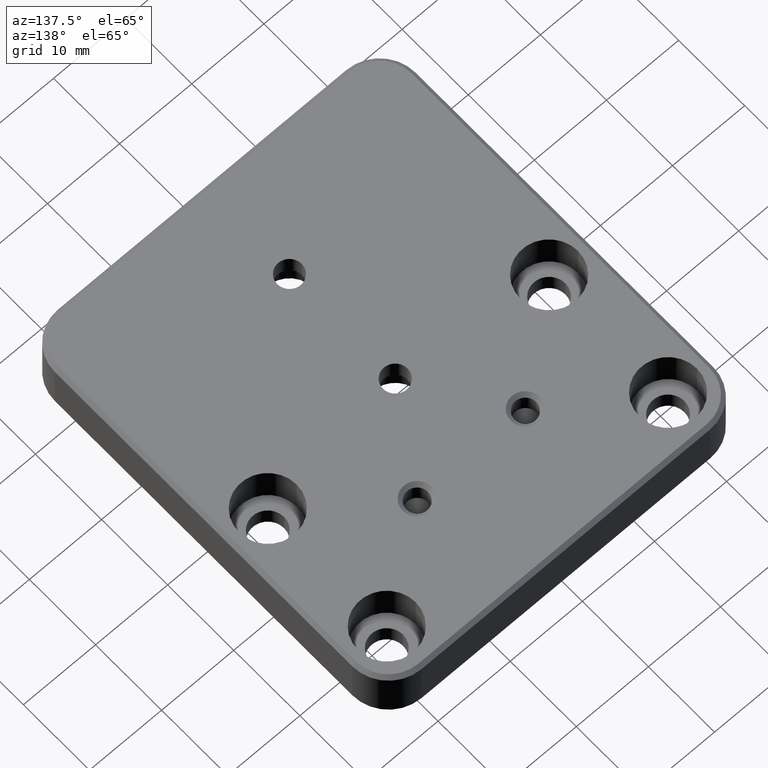
[diagram: clean part render]
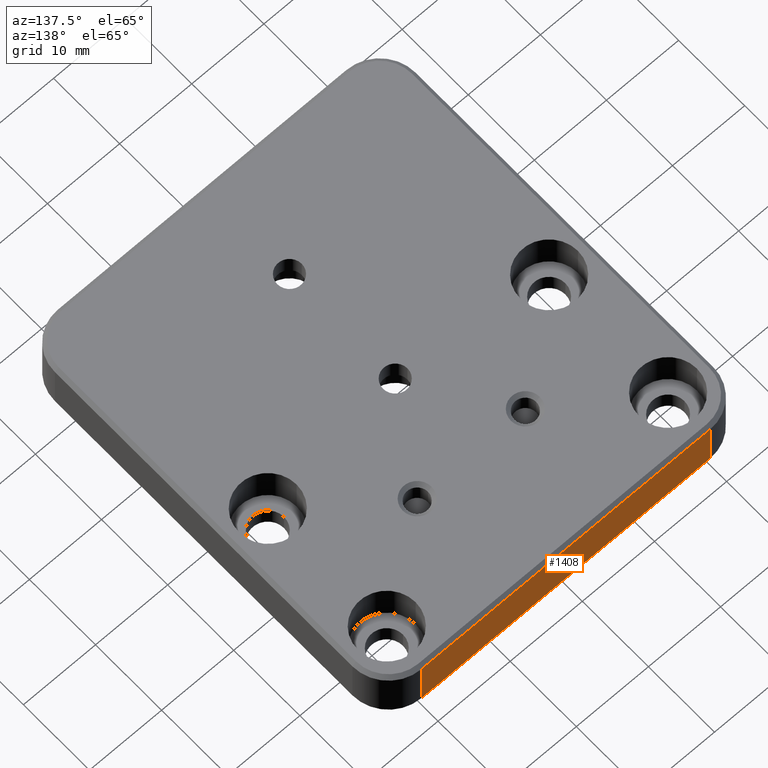
[diagram: same view with one face highlighted and labeled with its STEP entity id]
A machine part, auxiliary view. The second image highlights one B-rep face of the part: STEP entity #1408.
In plain terms, the highlighted planar face has unit normal (0, -1, 0).
Its self-contained STEP definition (entity closure, byte-faithful):
#78 = CARTESIAN_POINT ( 'NONE',  ( 19.99999999999998934, 27.50000000000000711, 0.4999999999999935052 ) ) ;
#94 = DIRECTION ( 'NONE',  ( 1.000000000000000000, 0.0000000000000000000, 0.0000000000000000000 ) ) ;
#207 = EDGE_CURVE ( 'NONE', #895, #449, #1379, .T. ) ;
#240 = DIRECTION ( 'NONE',  ( -0.0000000000000000000, -0.0000000000000000000, 1.000000000000000000 ) ) ;
#257 = CARTESIAN_POINT ( 'NONE',  ( 19.99999999999998934, 27.50000000000000711, 7.499999999999992895 ) ) ;
#260 = VECTOR ( 'NONE', #1455, 1000.000000000000000 ) ;
#447 = CARTESIAN_POINT ( 'NONE',  ( -25.00000000000000711, 27.50000000000000711, 0.4999999999999935052 ) ) ;
#449 = VERTEX_POINT ( 'NONE', #78 ) ;
#452 = CARTESIAN_POINT ( 'NONE',  ( -20.00000000000000711, 27.50000000000000711, 0.4999999999999935052 ) ) ;
#460 = FACE_OUTER_BOUND ( 'NONE', #1871, .T. ) ;
#507 = ORIENTED_EDGE ( 'NONE', *, *, #586, .T. ) ;
#558 = LINE ( 'NONE', #1762, #731 ) ;
#583 = AXIS2_PLACEMENT_3D ( 'NONE', #1169, #1490, #630 ) ;
#586 = EDGE_CURVE ( 'NONE', #449, #1425, #776, .T. ) ;
#630 = DIRECTION ( 'NONE',  ( 0.0000000000000000000, -0.0000000000000000000, -1.000000000000000000 ) ) ;
#657 = ORIENTED_EDGE ( 'NONE', *, *, #2079, .T. ) ;
#731 = VECTOR ( 'NONE', #240, 1000.000000000000000 ) ;
#776 = LINE ( 'NONE', #447, #260 ) ;
#853 = CARTESIAN_POINT ( 'NONE',  ( 19.99999999999998934, 27.50000000000000711, 8.000000000000000000 ) ) ;
#883 = ORIENTED_EDGE ( 'NONE', *, *, #1680, .T. ) ;
#886 = CARTESIAN_POINT ( 'NONE',  ( -20.00000000000000711, 27.50000000000000711, 7.499999999999992895 ) ) ;
#895 = VERTEX_POINT ( 'NONE', #257 ) ;
#936 = LINE ( 'NONE', #1624, #1295 ) ;
#1029 = DIRECTION ( 'NONE',  ( 0.0000000000000000000, 0.0000000000000000000, -1.000000000000000000 ) ) ;
#1169 = CARTESIAN_POINT ( 'NONE',  ( -25.00000000000000711, 27.50000000000000711, 8.000000000000000000 ) ) ;
#1211 = VECTOR ( 'NONE', #1029, 1000.000000000000000 ) ;
#1295 = VECTOR ( 'NONE', #94, 1000.000000000000000 ) ;
#1354 = ORIENTED_EDGE ( 'NONE', *, *, #207, .T. ) ;
#1379 = LINE ( 'NONE', #853, #1211 ) ;
#1408 = ADVANCED_FACE ( 'NONE', ( #460 ), #1675, .F. ) ;
#1425 = VERTEX_POINT ( 'NONE', #452 ) ;
#1455 = DIRECTION ( 'NONE',  ( -1.000000000000000000, 0.0000000000000000000, 0.0000000000000000000 ) ) ;
#1490 = DIRECTION ( 'NONE',  ( 0.0000000000000000000, -1.000000000000000000, 0.0000000000000000000 ) ) ;
#1624 = CARTESIAN_POINT ( 'NONE',  ( 19.99999999999998934, 27.50000000000000711, 7.499999999999992895 ) ) ;
#1675 = PLANE ( 'NONE',  #583 ) ;
#1680 = EDGE_CURVE ( 'NONE', #2142, #895, #936, .T. ) ;
#1762 = CARTESIAN_POINT ( 'NONE',  ( -20.00000000000000711, 27.50000000000000711, 8.000000000000000000 ) ) ;
#1871 = EDGE_LOOP ( 'NONE', ( #1354, #507, #657, #883 ) ) ;
#2079 = EDGE_CURVE ( 'NONE', #1425, #2142, #558, .T. ) ;
#2142 = VERTEX_POINT ( 'NONE', #886 ) ;